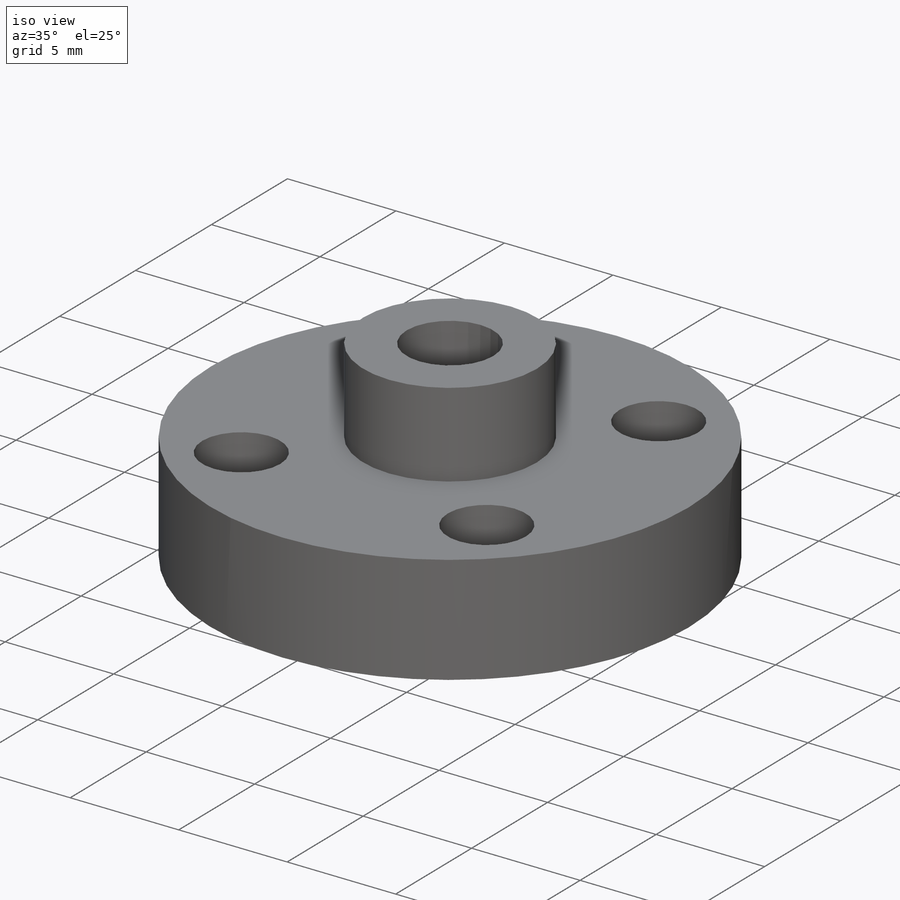
[diagram: iso view]
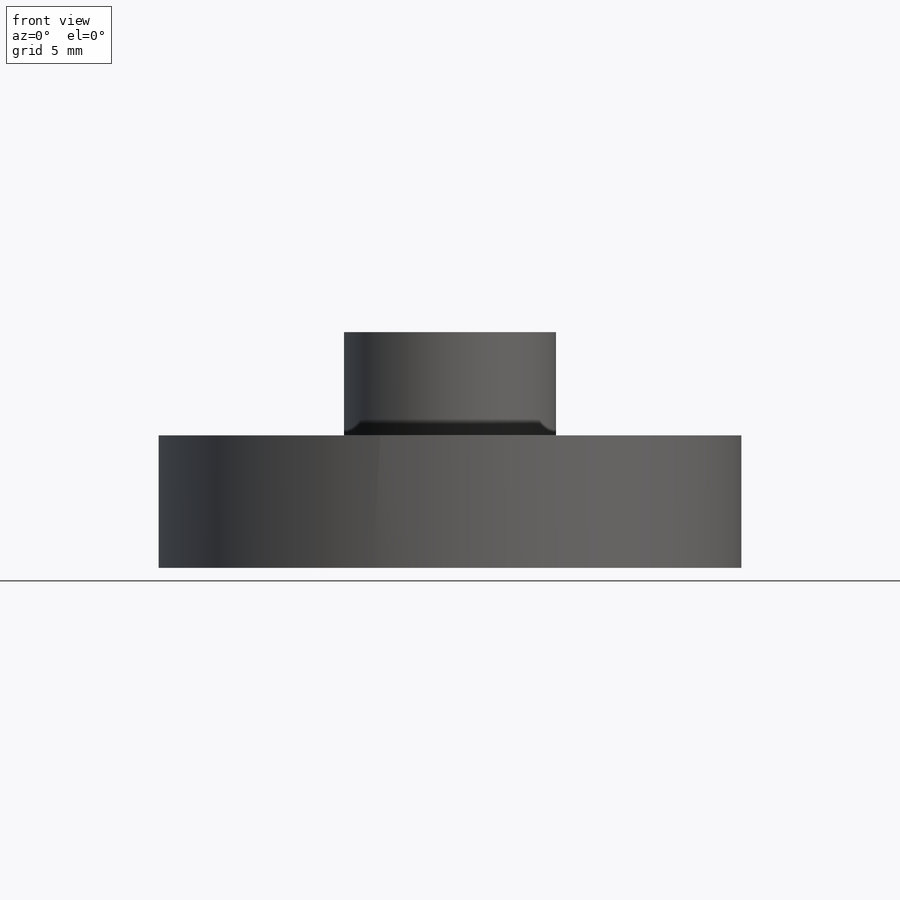
[diagram: front view]
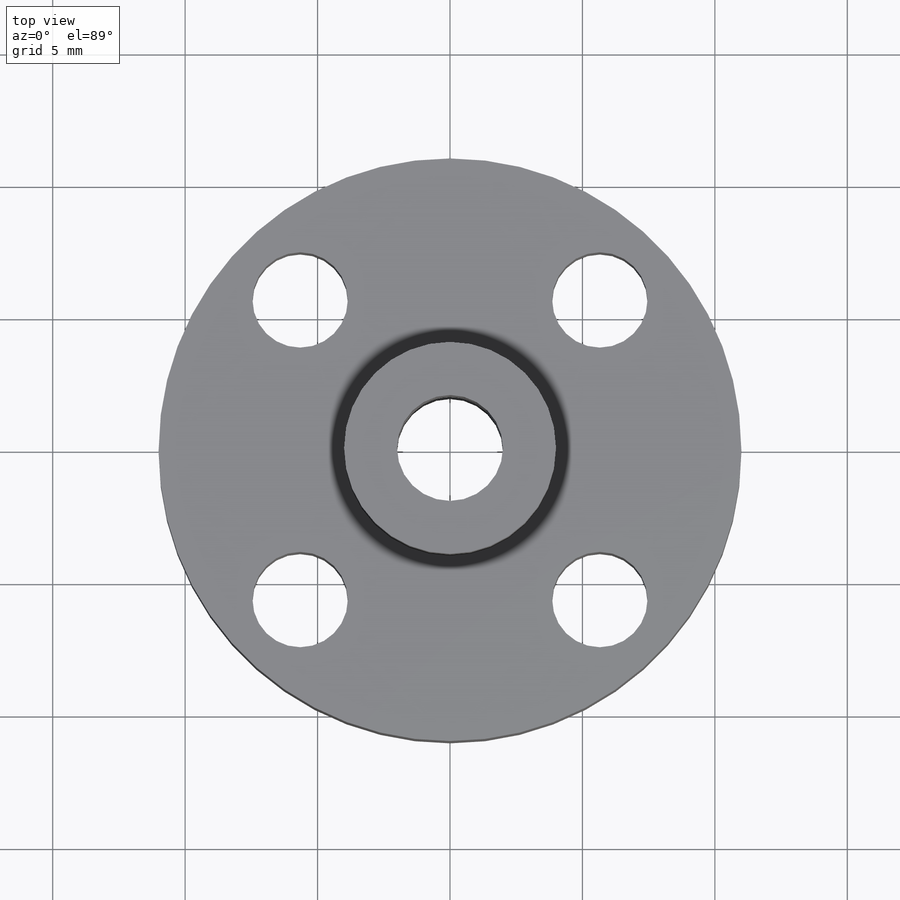
[diagram: top view]
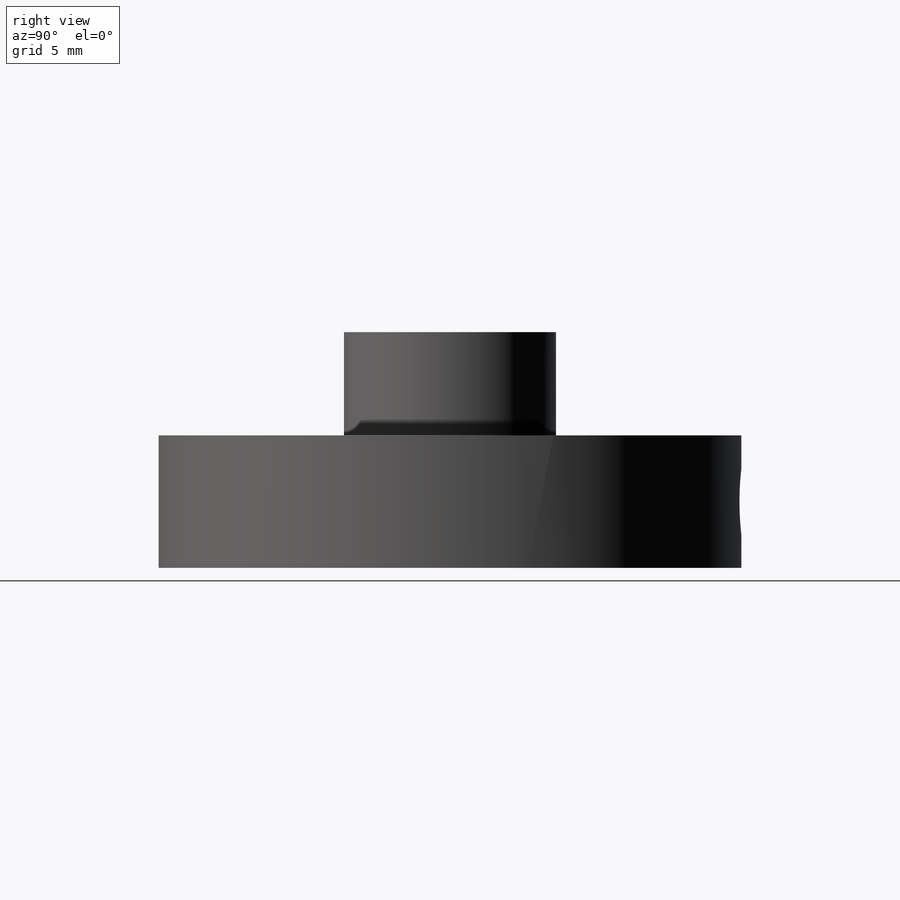
[diagram: right view]
SOLIDWORKS PART (.sldprt)
format: sldprt  version: not decoded by parser v0  size: 168,960 bytes
history: native  units: mm
features: sketch x5, cut_extrude x3, extrude x2, material x1 (+12 scaffold rows collapsed)
feature tree (23):
  scaffold x12  (default folders/planes/origin — collapsed)
  material  "재질 <지정안함>"
  sketch  "스케치1"  dims[D1=~39.633437mm]
  extrude  "보스-돌출1"  Depth=5mm
  sketch  "스케치2"  dims[D1=8.0mm]
  extrude  "보스-돌출2"  Depth=3.9mm
  sketch  "스케치3"  dims[c1.D1=~1.288261mm c2.D1=405.0deg]
  cut_extrude  "컷-돌출1"  [1 undecoded]
  sketch  "스케치4"  dims[D1=~0.587493mm]
  cut_extrude  "컷-돌출2"  [1 undecoded]
  sketch  "스케치6"  dims[D2=2.5mm D1=2.5mm]
  cut_extrude  "컷-돌출3"  Depth=13mm
decode coverage: 8 of 10 modeling features carry decoded parameters
note: ~ marks probable driven/reference dimensions
note: 2 parameter values undecoded
note: suppression state not decoded; provenance and decode notes live in map.json
